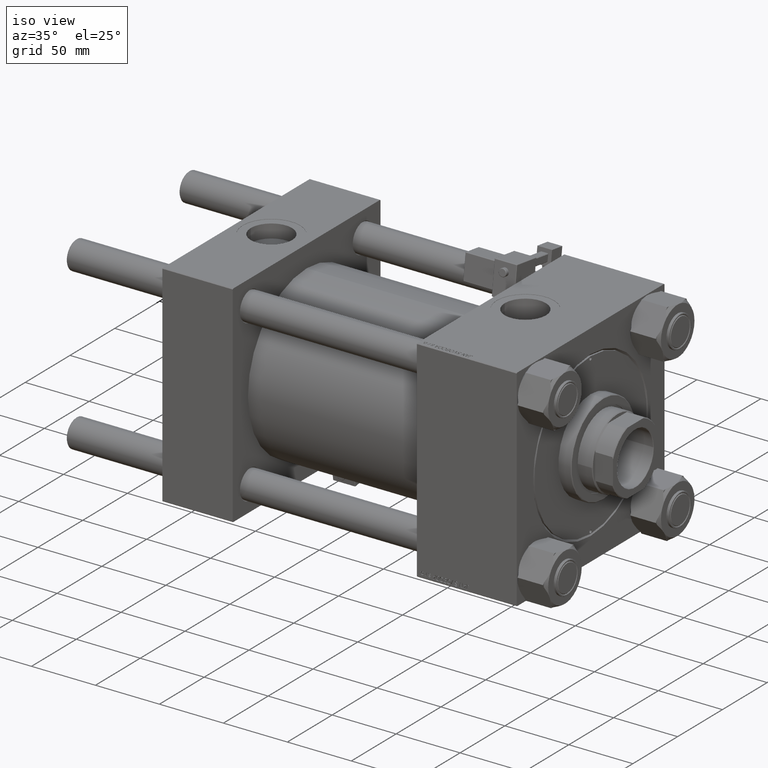
[diagram: clean part render]
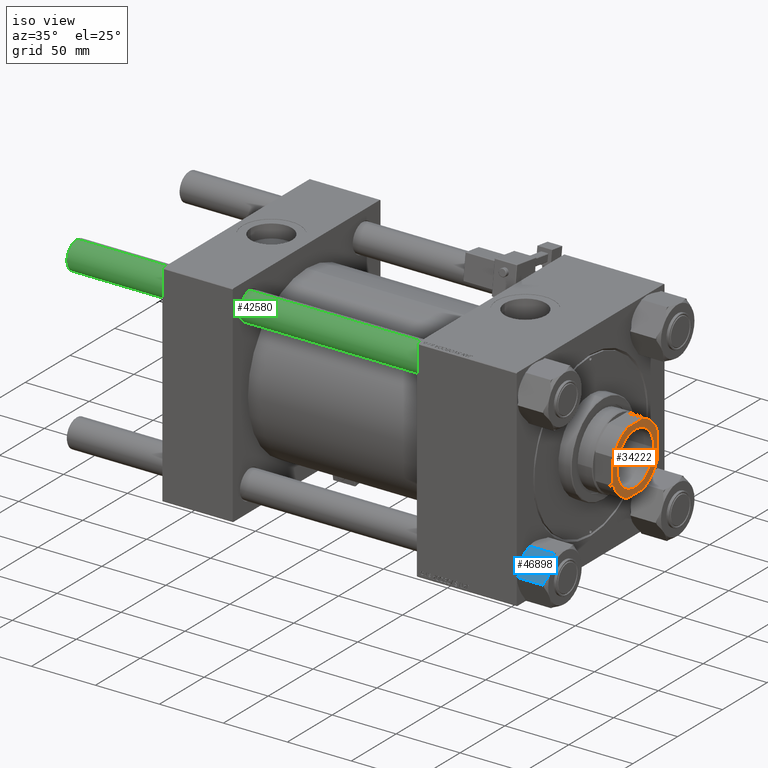
[diagram: same view with three faces highlighted in distinct colors, each labeled with its STEP entity id]
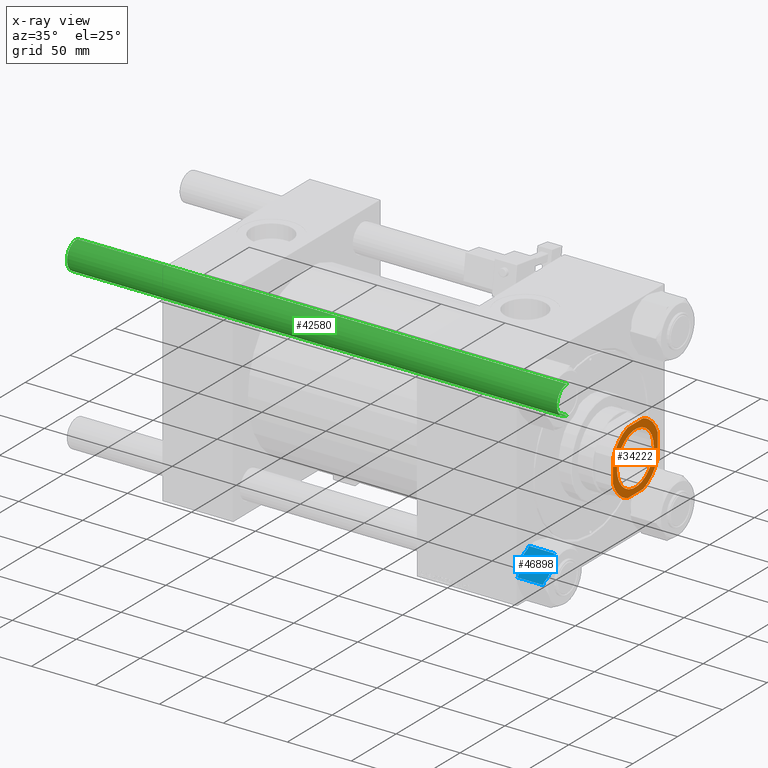
[diagram: x-ray of the same camera — body ghosted, the three highlighted faces saturated]
A machine part, iso view with three faces highlighted in distinct colors.
The next image is the same camera in x-ray (body ghosted, the three faces saturated) — at least one of them is partly hidden behind the body in this view.
Their STEP definitions:

[orange] entity #34222 — the highlighted planar face has unit normal (1, 0, -0).
#565 = CARTESIAN_POINT ( 'NONE',  ( 0.000000000000000000, 0.000000000000000000, 257.0000000000000000 ) ) ;
#1044 = LINE ( 'NONE', #12522, #30003 ) ;
#1805 = CARTESIAN_POINT ( 'NONE',  ( 0.000000000000000000, 0.000000000000000000, 257.0000000000000000 ) ) ;
#1843 = VECTOR ( 'NONE', #50649, 1000.000000000000000 ) ;
#3312 = DIRECTION ( 'NONE',  ( -0.000000000000000000, 0.000000000000000000, 1.000000000000000000 ) ) ;
#3448 = EDGE_CURVE ( 'NONE', #40273, #8281, #17159, .T. ) ;
#3452 = CARTESIAN_POINT ( 'NONE',  ( 8.789197915623587321, -25.00000000000000000, 257.0000000000000000 ) ) ;
#3599 = CARTESIAN_POINT ( 'NONE',  ( -20.55000000000001137, 2.516649172247812343E-15, 257.0000000000000000 ) ) ;
#3810 = DIRECTION ( 'NONE',  ( -0.000000000000000000, 0.000000000000000000, 1.000000000000000000 ) ) ;
#4036 = ORIENTED_EDGE ( 'NONE', *, *, #3448, .T. ) ;
#4420 = DIRECTION ( 'NONE',  ( -0.000000000000000000, 0.000000000000000000, 1.000000000000000000 ) ) ;
#5289 = FACE_BOUND ( 'NONE', #49818, .T. ) ;
#5916 = EDGE_CURVE ( 'NONE', #50708, #23321, #1044, .T. ) ;
#7438 = CARTESIAN_POINT ( 'NONE',  ( 8.789197915623589097, 25.00000000000000000, 257.0000000000000000 ) ) ;
#7527 = ORIENTED_EDGE ( 'NONE', *, *, #33392, .T. ) ;
#7557 = ORIENTED_EDGE ( 'NONE', *, *, #36005, .T. ) ;
#7944 = CARTESIAN_POINT ( 'NONE',  ( 25.00000000000000355, 8.789197915623583768, 257.0000000000000000 ) ) ;
#8281 = VERTEX_POINT ( 'NONE', #7438 ) ;
#9445 = DIRECTION ( 'NONE',  ( -0.000000000000000000, 0.000000000000000000, 1.000000000000000000 ) ) ;
#9566 = CIRCLE ( 'NONE', #39337, 26.50000000000004263 ) ;
#11136 = AXIS2_PLACEMENT_3D ( 'NONE', #32743, #25001, #48968 ) ;
#11150 = VERTEX_POINT ( 'NONE', #25897 ) ;
#12324 = CARTESIAN_POINT ( 'NONE',  ( 0.000000000000000000, 0.000000000000000000, 257.0000000000000000 ) ) ;
#12522 = CARTESIAN_POINT ( 'NONE',  ( -25.00000000000000000, 25.00000000000000000, 257.0000000000000000 ) ) ;
#12639 = AXIS2_PLACEMENT_3D ( 'NONE', #47768, #3312, #35812 ) ;
#12817 = DIRECTION ( 'NONE',  ( 1.000000000000000000, 0.000000000000000000, 0.000000000000000000 ) ) ;
#13255 = ORIENTED_EDGE ( 'NONE', *, *, #33115, .T. ) ;
#14077 = PLANE ( 'NONE',  #41776 ) ;
#14225 = CARTESIAN_POINT ( 'NONE',  ( -24.99999999999999645, 8.789197915623610413, 257.0000000000000000 ) ) ;
#14635 = AXIS2_PLACEMENT_3D ( 'NONE', #50966, #9445, #42201 ) ;
#15402 = LINE ( 'NONE', #39361, #33671 ) ;
#15453 = AXIS2_PLACEMENT_3D ( 'NONE', #12324, #3810, #29103 ) ;
#16312 = CIRCLE ( 'NONE', #14635, 26.50000000000004263 ) ;
#17159 = CIRCLE ( 'NONE', #15453, 26.50000000000004263 ) ;
#17573 = DIRECTION ( 'NONE',  ( 1.387778780781445676E-16, -1.000000000000000000, 0.000000000000000000 ) ) ;
#19310 = ORIENTED_EDGE ( 'NONE', *, *, #38975, .T. ) ;
#21622 = VERTEX_POINT ( 'NONE', #3452 ) ;
#21802 = FACE_OUTER_BOUND ( 'NONE', #41841, .T. ) ;
#22061 = DIRECTION ( 'NONE',  ( -0.000000000000000000, 0.000000000000000000, 1.000000000000000000 ) ) ;
#22427 = CARTESIAN_POINT ( 'NONE',  ( -24.99999999999999289, -25.00000000000000000, 257.0000000000000000 ) ) ;
#22631 = EDGE_CURVE ( 'NONE', #8281, #11150, #24752, .T. ) ;
#23321 = VERTEX_POINT ( 'NONE', #45667 ) ;
#23641 = DIRECTION ( 'NONE',  ( -1.387778780781445676E-16, 1.000000000000000000, -0.000000000000000000 ) ) ;
#23874 = AXIS2_PLACEMENT_3D ( 'NONE', #565, #49289, #12817 ) ;
#24562 = ORIENTED_EDGE ( 'NONE', *, *, #25096, .T. ) ;
#24752 = LINE ( 'NONE', #48977, #36560 ) ;
#25001 = DIRECTION ( 'NONE',  ( 0.000000000000000000, -0.000000000000000000, -1.000000000000000000 ) ) ;
#25096 = EDGE_CURVE ( 'NONE', #23321, #29182, #28804, .T. ) ;
#25897 = CARTESIAN_POINT ( 'NONE',  ( -8.789197915623599755, 25.00000000000000000, 257.0000000000000000 ) ) ;
#28804 = CIRCLE ( 'NONE', #12639, 26.50000000000000711 ) ;
#29103 = DIRECTION ( 'NONE',  ( 1.000000000000000000, 0.000000000000000000, 0.000000000000000000 ) ) ;
#29182 = VERTEX_POINT ( 'NONE', #46041 ) ;
#30003 = VECTOR ( 'NONE', #17573, 1000.000000000000000 ) ;
#30723 = VERTEX_POINT ( 'NONE', #37176 ) ;
#31184 = ORIENTED_EDGE ( 'NONE', *, *, #41398, .T. ) ;
#31498 = ORIENTED_EDGE ( 'NONE', *, *, #22631, .T. ) ;
#32743 = CARTESIAN_POINT ( 'NONE',  ( 0.000000000000000000, 0.000000000000000000, 257.0000000000000000 ) ) ;
#33115 = EDGE_CURVE ( 'NONE', #39750, #49788, #46809, .T. ) ;
#33392 = EDGE_CURVE ( 'NONE', #49788, #39750, #45166, .T. ) ;
#33671 = VECTOR ( 'NONE', #23641, 1000.000000000000000 ) ;
#34222 = ADVANCED_FACE ( 'NONE', ( #5289, #21802 ), #14077, .T. ) ;
#34670 = ORIENTED_EDGE ( 'NONE', *, *, #5916, .T. ) ;
#34946 = LINE ( 'NONE', #22427, #1843 ) ;
#35812 = DIRECTION ( 'NONE',  ( 1.000000000000000000, 0.000000000000000000, 0.000000000000000000 ) ) ;
#36005 = EDGE_CURVE ( 'NONE', #29182, #21622, #34946, .T. ) ;
#36560 = VECTOR ( 'NONE', #36747, 1000.000000000000000 ) ;
#36747 = DIRECTION ( 'NONE',  ( -1.000000000000000000, -0.000000000000000000, -0.000000000000000000 ) ) ;
#37176 = CARTESIAN_POINT ( 'NONE',  ( 25.00000000000000355, -8.789197915623574886, 257.0000000000000000 ) ) ;
#37523 = DIRECTION ( 'NONE',  ( 1.000000000000000000, 0.000000000000000000, 0.000000000000000000 ) ) ;
#38975 = EDGE_CURVE ( 'NONE', #21622, #30723, #16312, .T. ) ;
#39337 = AXIS2_PLACEMENT_3D ( 'NONE', #40915, #4420, #49158 ) ;
#39361 = CARTESIAN_POINT ( 'NONE',  ( 25.00000000000000000, 25.00000000000000000, 257.0000000000000000 ) ) ;
#39750 = VERTEX_POINT ( 'NONE', #51767 ) ;
#40273 = VERTEX_POINT ( 'NONE', #7944 ) ;
#40915 = CARTESIAN_POINT ( 'NONE',  ( 0.000000000000000000, 0.000000000000000000, 257.0000000000000000 ) ) ;
#41398 = EDGE_CURVE ( 'NONE', #11150, #50708, #9566, .T. ) ;
#41776 = AXIS2_PLACEMENT_3D ( 'NONE', #1805, #22061, #37523 ) ;
#41841 = EDGE_LOOP ( 'NONE', ( #42231, #4036, #31498, #31184, #34670, #24562, #7557, #19310 ) ) ;
#42201 = DIRECTION ( 'NONE',  ( 1.000000000000000000, 0.000000000000000000, 0.000000000000000000 ) ) ;
#42231 = ORIENTED_EDGE ( 'NONE', *, *, #50327, .T. ) ;
#45166 = CIRCLE ( 'NONE', #11136, 20.55000000000001137 ) ;
#45667 = CARTESIAN_POINT ( 'NONE',  ( -24.99999999999999645, -8.789197915623496726, 257.0000000000000000 ) ) ;
#46041 = CARTESIAN_POINT ( 'NONE',  ( -8.789197915623482515, -25.00000000000000000, 257.0000000000000000 ) ) ;
#46809 = CIRCLE ( 'NONE', #23874, 20.55000000000001137 ) ;
#47768 = CARTESIAN_POINT ( 'NONE',  ( 0.000000000000000000, 0.000000000000000000, 257.0000000000000000 ) ) ;
#48968 = DIRECTION ( 'NONE',  ( 1.000000000000000000, 0.000000000000000000, 0.000000000000000000 ) ) ;
#48977 = CARTESIAN_POINT ( 'NONE',  ( -25.00000000000000000, 25.00000000000000000, 257.0000000000000000 ) ) ;
#49158 = DIRECTION ( 'NONE',  ( 1.000000000000000000, 0.000000000000000000, 0.000000000000000000 ) ) ;
#49289 = DIRECTION ( 'NONE',  ( 0.000000000000000000, -0.000000000000000000, -1.000000000000000000 ) ) ;
#49788 = VERTEX_POINT ( 'NONE', #3599 ) ;
#49818 = EDGE_LOOP ( 'NONE', ( #13255, #7527 ) ) ;
#50327 = EDGE_CURVE ( 'NONE', #30723, #40273, #15402, .T. ) ;
#50649 = DIRECTION ( 'NONE',  ( 1.000000000000000000, 0.000000000000000000, 0.000000000000000000 ) ) ;
#50708 = VERTEX_POINT ( 'NONE', #14225 ) ;
#50966 = CARTESIAN_POINT ( 'NONE',  ( 0.000000000000000000, 0.000000000000000000, 257.0000000000000000 ) ) ;
#51767 = CARTESIAN_POINT ( 'NONE',  ( 20.55000000000001137, 0.000000000000000000, 257.0000000000000000 ) ) ;

[blue] entity #46898 — the highlighted planar face has unit normal (-0, 0.8135, -0.5816).
#82 = CARTESIAN_POINT ( 'NONE',  ( 20.30204076991166318, 2.282772348817385666, -22.30351413196913413 ) ) ;
#542 = CARTESIAN_POINT ( 'NONE',  ( 13.20154625327793241, 14.58118961049118667, -23.10638014572219845 ) ) ;
#763 = CARTESIAN_POINT ( 'NONE',  ( 16.60104632518792656, 8.693082765609057461, -0.01197337667083741251 ) ) ;
#1083 = DIRECTION ( 'NONE',  ( 0.5000000000000006661, -0.8660254037844382635, 0.000000000000000000 ) ) ;
#1609 = CARTESIAN_POINT ( 'NONE',  ( 10.80999999999998629, 18.72346922981958528, -24.00000000000000000 ) ) ;
#1797 = CARTESIAN_POINT ( 'NONE',  ( 18.12021770021052092, 6.061800758665638611, -0.3703068632035774743 ) ) ;
#2417 = EDGE_CURVE ( 'NONE', #49459, #31220, #30002, .T. ) ;
#3321 = VERTEX_POINT ( 'NONE', #33944 ) ;
#3814 = CARTESIAN_POINT ( 'NONE',  ( 16.98310883762007251, 8.031331082409160160, -23.99999999999999645 ) ) ;
#4001 = EDGE_CURVE ( 'NONE', #7207, #3321, #33198, .T. ) ;
#4400 = CARTESIAN_POINT ( 'NONE',  ( 16.21499999999998920, 9.361734614909789087, -24.00000000000000000 ) ) ;
#4500 = CARTESIAN_POINT ( 'NONE',  ( 13.58342913161266630, 13.91974906267479817, -0.7123487060405643279 ) ) ;
#4890 = ORIENTED_EDGE ( 'NONE', *, *, #30800, .F. ) ;
#6163 = LINE ( 'NONE', #11210, #28478 ) ;
#6324 = ORIENTED_EDGE ( 'NONE', *, *, #49323, .F. ) ;
#6863 = DIRECTION ( 'NONE',  ( 0.5000000000000006661, -0.8660254037844382635, 0.000000000000000000 ) ) ;
#7207 = VERTEX_POINT ( 'NONE', #48798 ) ;
#7604 = CARTESIAN_POINT ( 'NONE',  ( 20.65611126068910863, 1.669504269330004842, -22.00000000000000000 ) ) ;
#7664 = CARTESIAN_POINT ( 'NONE',  ( 10.80999999999998629, 18.72346922981958528, -22.00000000000000000 ) ) ;
#8290 = CARTESIAN_POINT ( 'NONE',  ( 16.21499999999998920, 9.361734614909789087, -24.00000000000000000 ) ) ;
#8360 = DIRECTION ( 'NONE',  ( -0.000000000000000000, -0.000000000000000000, 1.000000000000000000 ) ) ;
#8519 = CARTESIAN_POINT ( 'NONE',  ( 14.69400019531145851, 11.99618355493267607, -0.1908188403548073120 ) ) ;
#8764 = CARTESIAN_POINT ( 'NONE',  ( 16.21499999999998920, 9.361734614909789087, 0.000000000000000000 ) ) ;
#9724 = CARTESIAN_POINT ( 'NONE',  ( 11.77388873931089108, 17.05396496048958710, -22.00000000000000000 ) ) ;
#10452 = CARTESIAN_POINT ( 'NONE',  ( 20.65611126068910863, 1.669504269330004842, -2.000000000000000000 ) ) ;
#11210 = CARTESIAN_POINT ( 'NONE',  ( 10.80999999999998629, 18.72346922981958528, -22.00000000000000000 ) ) ;
#11906 = VECTOR ( 'NONE', #34474, 1000.000000000000114 ) ;
#12766 = CARTESIAN_POINT ( 'NONE',  ( 15.44689116237993076, 10.69213814741043223, -1.251745289452404568E-14 ) ) ;
#14047 = CARTESIAN_POINT ( 'NONE',  ( 11.77388873931089108, 17.05396496048958710, -22.00000000000000000 ) ) ;
#15663 = LINE ( 'NONE', #7664, #17560 ) ;
#16331 = EDGE_CURVE ( 'NONE', #29775, #49707, #40654, .T. ) ;
#16681 = EDGE_CURVE ( 'NONE', #41492, #29775, #41211, .T. ) ;
#17280 = CARTESIAN_POINT ( 'NONE',  ( 19.22845374672205665, 4.142279619328401274, -0.8936198542777975540 ) ) ;
#17560 = VECTOR ( 'NONE', #6863, 1000.000000000000114 ) ;
#17600 = ORIENTED_EDGE ( 'NONE', *, *, #16331, .F. ) ;
#18675 = DIRECTION ( 'NONE',  ( 0.5000000000000006661, -0.8660254037844382635, 0.000000000000000000 ) ) ;
#18686 = CARTESIAN_POINT ( 'NONE',  ( 10.80999999999998629, 18.72346922981958528, -2.000000000000001776 ) ) ;
#19808 = CARTESIAN_POINT ( 'NONE',  ( 17.73599980468854298, 6.727285674886908318, -23.80918115964519188 ) ) ;
#20240 = CARTESIAN_POINT ( 'NONE',  ( 11.77388873931089108, 17.05396496048958710, -2.000000000000000000 ) ) ;
#20333 = CARTESIAN_POINT ( 'NONE',  ( 16.21499999999998920, 9.361734614909789087, -24.00000000000000000 ) ) ;
#20498 = CARTESIAN_POINT ( 'NONE',  ( 12.48753218109485630, 15.81789826083144312, -1.417879168323228800 ) ) ;
#20602 = CARTESIAN_POINT ( 'NONE',  ( 21.62000000000000810, 1.744330686404896784E-14, -24.00000000000000000 ) ) ;
#20760 = CARTESIAN_POINT ( 'NONE',  ( 13.21634051119549547, 14.55556520411771260, -0.9250850388961051607 ) ) ;
#21244 = B_SPLINE_CURVE_WITH_KNOTS ( 'NONE', 3,
 ( #45754, #33776, #17280, #1797, #22051, #42290, #25784, #763, #37514, #8764 ),
 .UNSPECIFIED., .F., .F.,
 ( 4, 2, 2, 2, 4 ),
 ( 5.007809737491584464E-07, 0.004555175037830379303, 0.006832512166258693231, 0.007971180730472848461, 0.009109849294687001955 ),
 .UNSPECIFIED. ) ;
#21746 = CARTESIAN_POINT ( 'NONE',  ( 21.62000000000000810, 1.744330686404896784E-14, -22.00000000000000000 ) ) ;
#22051 = CARTESIAN_POINT ( 'NONE',  ( 17.74616263960890095, 6.709683128455918855, -0.2338220771834093048 ) ) ;
#22283 = CARTESIAN_POINT ( 'NONE',  ( 16.02284832181304353, 9.694551084289230403, -23.99999999999998934 ) ) ;
#22945 = VERTEX_POINT ( 'NONE', #45712 ) ;
#24212 = ORIENTED_EDGE ( 'NONE', *, *, #30991, .F. ) ;
#24313 = CARTESIAN_POINT ( 'NONE',  ( 18.84657086838733164, 4.803720167144789777, -23.28765129395943134 ) ) ;
#24459 = ORIENTED_EDGE ( 'NONE', *, *, #16681, .F. ) ;
#25474 = CARTESIAN_POINT ( 'NONE',  ( 10.80999999999998629, 18.72346922981958528, -22.00000000000000000 ) ) ;
#25784 = CARTESIAN_POINT ( 'NONE',  ( 16.98598932500587466, 8.026341931906380012, -0.05945867712357952306 ) ) ;
#27239 = CARTESIAN_POINT ( 'NONE',  ( 12.12795923008833654, 16.44069688100221072, -1.696485868030865651 ) ) ;
#27353 = ORIENTED_EDGE ( 'NONE', *, *, #37180, .F. ) ;
#28478 = VECTOR ( 'NONE', #18675, 1000.000000000000114 ) ;
#29334 = FACE_OUTER_BOUND ( 'NONE', #37444, .T. ) ;
#29775 = VERTEX_POINT ( 'NONE', #4400 ) ;
#30002 = LINE ( 'NONE', #46226, #32444 ) ;
#30800 = EDGE_CURVE ( 'NONE', #22945, #36883, #42466, .T. ) ;
#30991 = EDGE_CURVE ( 'NONE', #42950, #22945, #40840, .T. ) ;
#31220 = VERTEX_POINT ( 'NONE', #18686 ) ;
#31442 = ORIENTED_EDGE ( 'NONE', *, *, #2417, .T. ) ;
#32444 = VECTOR ( 'NONE', #34773, 1000.000000000000000 ) ;
#32551 = VECTOR ( 'NONE', #33853, 1000.000000000000114 ) ;
#32750 = CARTESIAN_POINT ( 'NONE',  ( 16.21499999999998920, 9.361734614909789087, 0.000000000000000000 ) ) ;
#32782 = CARTESIAN_POINT ( 'NONE',  ( 14.68383736039110410, 12.01378610136367264, -23.76617792281659192 ) ) ;
#33198 = B_SPLINE_CURVE_WITH_KNOTS ( 'NONE', 3,
 ( #32750, #12766, #8519, #4500, #20760, #20498, #27239, #20240 ),
 .UNSPECIFIED., .F., .F.,
 ( 4, 2, 2, 4 ),
 ( 0.009109849294687001955, 0.01366157320126706529, 0.01593743515455709261, 0.01821329710784712688 ),
 .UNSPECIFIED. ) ;
#33327 = PLANE ( 'NONE',  #46389 ) ;
#33776 = CARTESIAN_POINT ( 'NONE',  ( 19.94878361794603450, 2.894631684158932128, -1.393668941363780611 ) ) ;
#33853 = DIRECTION ( 'NONE',  ( -0.5000000000000006661, 0.8660254037844382635, 0.000000000000000000 ) ) ;
#33944 = CARTESIAN_POINT ( 'NONE',  ( 11.77388873931089108, 17.05396496048958710, -2.000000000000000000 ) ) ;
#34474 = DIRECTION ( 'NONE',  ( -0.5000000000000006661, 0.8660254037844382635, 0.000000000000000000 ) ) ;
#34773 = DIRECTION ( 'NONE',  ( -0.000000000000000000, -0.000000000000000000, 1.000000000000000000 ) ) ;
#36057 = CARTESIAN_POINT ( 'NONE',  ( 19.94246781890515763, 2.905570968988150149, -22.58212083167676809 ) ) ;
#36289 = EDGE_CURVE ( 'NONE', #36883, #7207, #21244, .T. ) ;
#36883 = VERTEX_POINT ( 'NONE', #10452 ) ;
#37180 = EDGE_CURVE ( 'NONE', #3321, #31220, #37843, .T. ) ;
#37444 = EDGE_LOOP ( 'NONE', ( #6324, #31442, #27353, #44271, #49198, #4890, #24212, #48783, #17600, #24459 ) ) ;
#37514 = CARTESIAN_POINT ( 'NONE',  ( 16.40715167818695974, 9.028918145530360206, -1.313164589605533442E-14 ) ) ;
#37583 = DIRECTION ( 'NONE',  ( -0.8660254037844382635, -0.5000000000000006661, 0.000000000000000000 ) ) ;
#37843 = LINE ( 'NONE', #50083, #32551 ) ;
#40654 = B_SPLINE_CURVE_WITH_KNOTS ( 'NONE', 3,
 ( #20333, #3814, #19808, #24313, #48541, #36057, #82, #48803 ),
 .UNSPECIFIED., .F., .F.,
 ( 4, 2, 2, 4 ),
 ( 0.009109849294687000221, 0.01366157320126706529, 0.01593743515455709608, 0.01821329710784712341 ),
 .UNSPECIFIED. ) ;
#40771 = CARTESIAN_POINT ( 'NONE',  ( 12.48121638205396344, 15.82883754566065804, -22.60633105863621495 ) ) ;
#40840 = LINE ( 'NONE', #20602, #41664 ) ;
#41211 = B_SPLINE_CURVE_WITH_KNOTS ( 'NONE', 3,
 ( #14047, #40771, #542, #45284, #32782, #46254, #50508, #49008, #22283, #8290 ),
 .UNSPECIFIED., .F., .F.,
 ( 4, 2, 2, 2, 4 ),
 ( 5.007809737446996650E-07, 0.004555175037830372364, 0.006832512166258686293, 0.007971180730472844991, 0.009109849294687000221 ),
 .UNSPECIFIED. ) ;
#41492 = VERTEX_POINT ( 'NONE', #9724 ) ;
#41664 = VECTOR ( 'NONE', #8360, 1000.000000000000000 ) ;
#42290 = CARTESIAN_POINT ( 'NONE',  ( 17.17703765647816994, 7.695436515095103402, -0.09483449834990671790 ) ) ;
#42466 = LINE ( 'NONE', #42727, #11906 ) ;
#42727 = CARTESIAN_POINT ( 'NONE',  ( 10.80999999999998629, 18.72346922981958528, -2.000000000000001776 ) ) ;
#42950 = VERTEX_POINT ( 'NONE', #21746 ) ;
#44271 = ORIENTED_EDGE ( 'NONE', *, *, #4001, .F. ) ;
#44648 = EDGE_CURVE ( 'NONE', #49707, #42950, #6163, .T. ) ;
#45284 = CARTESIAN_POINT ( 'NONE',  ( 14.30978229978947347, 12.66166847115395555, -23.62969313679642624 ) ) ;
#45712 = CARTESIAN_POINT ( 'NONE',  ( 21.62000000000000810, 1.744330686404896784E-14, -2.000000000000001776 ) ) ;
#45754 = CARTESIAN_POINT ( 'NONE',  ( 20.65611126068910863, 1.669504269330004842, -2.000000000000000000 ) ) ;
#46226 = CARTESIAN_POINT ( 'NONE',  ( 10.80999999999998629, 18.72346922981958528, -24.00000000000000000 ) ) ;
#46254 = CARTESIAN_POINT ( 'NONE',  ( 15.25296234352182090, 11.02803271472448721, -23.90516550165009235 ) ) ;
#46389 = AXIS2_PLACEMENT_3D ( 'NONE', #1609, #37583, #1083 ) ;
#46898 = ADVANCED_FACE ( 'NONE', ( #29334 ), #33327, .F. ) ;
#48541 = CARTESIAN_POINT ( 'NONE',  ( 19.21365948880451313, 4.167904025701879789, -23.07491496110389662 ) ) ;
#48783 = ORIENTED_EDGE ( 'NONE', *, *, #44648, .F. ) ;
#48798 = CARTESIAN_POINT ( 'NONE',  ( 16.21499999999998920, 9.361734614909789087, 0.000000000000000000 ) ) ;
#48803 = CARTESIAN_POINT ( 'NONE',  ( 20.65611126068910863, 1.669504269330004842, -22.00000000000000000 ) ) ;
#49008 = CARTESIAN_POINT ( 'NONE',  ( 15.82895367481207671, 10.03038646421053137, -23.98802662332916924 ) ) ;
#49198 = ORIENTED_EDGE ( 'NONE', *, *, #36289, .F. ) ;
#49323 = EDGE_CURVE ( 'NONE', #49459, #41492, #15663, .T. ) ;
#49459 = VERTEX_POINT ( 'NONE', #25474 ) ;
#49707 = VERTEX_POINT ( 'NONE', #7604 ) ;
#50083 = CARTESIAN_POINT ( 'NONE',  ( 10.80999999999998629, 18.72346922981958528, -2.000000000000001776 ) ) ;
#50508 = CARTESIAN_POINT ( 'NONE',  ( 15.44401067499411795, 10.69712729791321060, -23.94054132287642389 ) ) ;

[green] entity #42580 — the highlighted cylindrical surface (edge-blend (fillet) strip) has radius 11 mm, axis along (1, -0, 0).
#644 = VERTEX_POINT ( 'NONE', #43429 ) ;
#755 = LINE ( 'NONE', #30045, #16316 ) ;
#1812 = CARTESIAN_POINT ( 'NONE',  ( -11.00000000000000000, 0.000000000000000000, 0.4999999999999449329 ) ) ;
#3919 = DIRECTION ( 'NONE',  ( -0.000000000000000000, -0.000000000000000000, 1.000000000000000000 ) ) ;
#4483 = DIRECTION ( 'NONE',  ( -0.000000000000000000, -0.000000000000000000, -1.000000000000000000 ) ) ;
#5148 = CARTESIAN_POINT ( 'NONE',  ( 0.000000000000000000, 0.000000000000000000, 384.0000000000000000 ) ) ;
#6196 = CYLINDRICAL_SURFACE ( 'NONE', #18162, 11.00000000000000000 ) ;
#10574 = ORIENTED_EDGE ( 'NONE', *, *, #39166, .T. ) ;
#11839 = ORIENTED_EDGE ( 'NONE', *, *, #52516, .T. ) ;
#16316 = VECTOR ( 'NONE', #4483, 1000.000000000000000 ) ;
#17523 = CIRCLE ( 'NONE', #41320, 11.00000000000000000 ) ;
#18162 = AXIS2_PLACEMENT_3D ( 'NONE', #5148, #22431, #31761 ) ;
#18837 = VERTEX_POINT ( 'NONE', #23289 ) ;
#22319 = DIRECTION ( 'NONE',  ( -0.000000000000000000, -0.000000000000000000, -1.000000000000000000 ) ) ;
#22431 = DIRECTION ( 'NONE',  ( -0.000000000000000000, -0.000000000000000000, -1.000000000000000000 ) ) ;
#23289 = CARTESIAN_POINT ( 'NONE',  ( 11.00000000000000000, 1.347111479062088405E-15, 383.5000000000000568 ) ) ;
#30045 = CARTESIAN_POINT ( 'NONE',  ( -11.00000000000000000, 0.000000000000000000, 384.0000000000000000 ) ) ;
#31761 = DIRECTION ( 'NONE',  ( -1.000000000000000000, 0.000000000000000000, 0.000000000000000000 ) ) ;
#32845 = DIRECTION ( 'NONE',  ( 1.000000000000000000, 0.000000000000000000, 0.000000000000000000 ) ) ;
#33077 = VERTEX_POINT ( 'NONE', #49029 ) ;
#33979 = ORIENTED_EDGE ( 'NONE', *, *, #47463, .T. ) ;
#34691 = FACE_OUTER_BOUND ( 'NONE', #41548, .T. ) ;
#35360 = EDGE_CURVE ( 'NONE', #644, #48223, #755, .T. ) ;
#37099 = CARTESIAN_POINT ( 'NONE',  ( 0.000000000000000000, 0.000000000000000000, 383.5000000000000568 ) ) ;
#39166 = EDGE_CURVE ( 'NONE', #644, #18837, #41810, .T. ) ;
#40403 = DIRECTION ( 'NONE',  ( 1.000000000000000000, 0.000000000000000000, 0.000000000000000000 ) ) ;
#40836 = DIRECTION ( 'NONE',  ( 0.000000000000000000, 0.000000000000000000, -1.000000000000000000 ) ) ;
#41320 = AXIS2_PLACEMENT_3D ( 'NONE', #51856, #3919, #40403 ) ;
#41548 = EDGE_LOOP ( 'NONE', ( #10574, #11839, #33979, #44902 ) ) ;
#41810 = CIRCLE ( 'NONE', #50311, 11.00000000000000000 ) ;
#42580 = ADVANCED_FACE ( 'NONE', ( #34691 ), #6196, .T. ) ;
#43429 = CARTESIAN_POINT ( 'NONE',  ( -11.00000000000000000, 0.000000000000000000, 383.5000000000000568 ) ) ;
#44902 = ORIENTED_EDGE ( 'NONE', *, *, #35360, .F. ) ;
#46549 = LINE ( 'NONE', #46801, #50765 ) ;
#46801 = CARTESIAN_POINT ( 'NONE',  ( 11.00000000000000000, 1.347111479062088405E-15, 384.0000000000000000 ) ) ;
#47463 = EDGE_CURVE ( 'NONE', #33077, #48223, #17523, .T. ) ;
#48223 = VERTEX_POINT ( 'NONE', #1812 ) ;
#49029 = CARTESIAN_POINT ( 'NONE',  ( 11.00000000000000000, 1.347111479062088405E-15, 0.4999999999999449329 ) ) ;
#50311 = AXIS2_PLACEMENT_3D ( 'NONE', #37099, #40836, #32845 ) ;
#50765 = VECTOR ( 'NONE', #22319, 1000.000000000000000 ) ;
#51856 = CARTESIAN_POINT ( 'NONE',  ( 0.000000000000000000, 0.000000000000000000, 0.4999999999999449329 ) ) ;
#52516 = EDGE_CURVE ( 'NONE', #18837, #33077, #46549, .T. ) ;